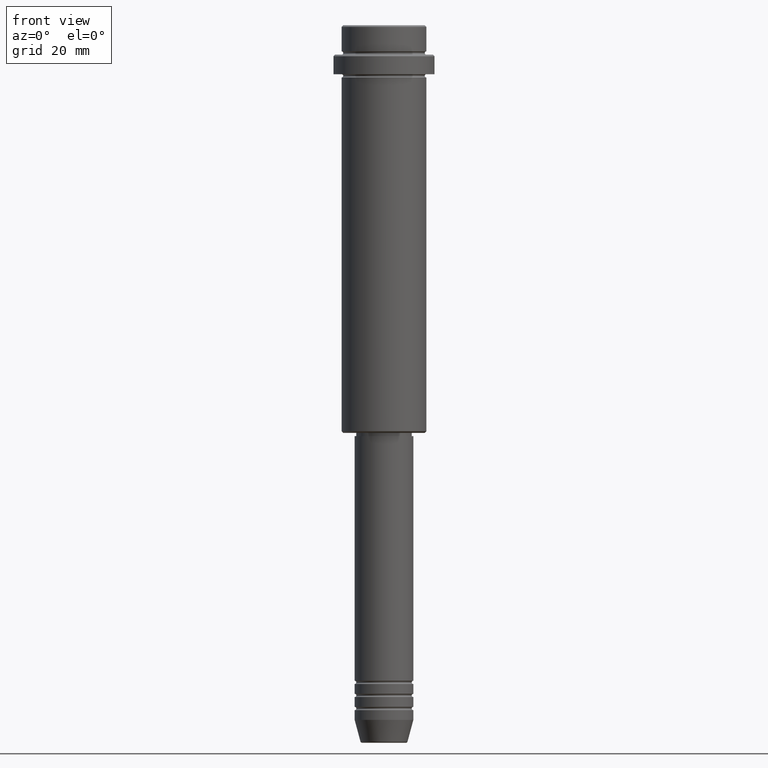
[diagram: clean part render]
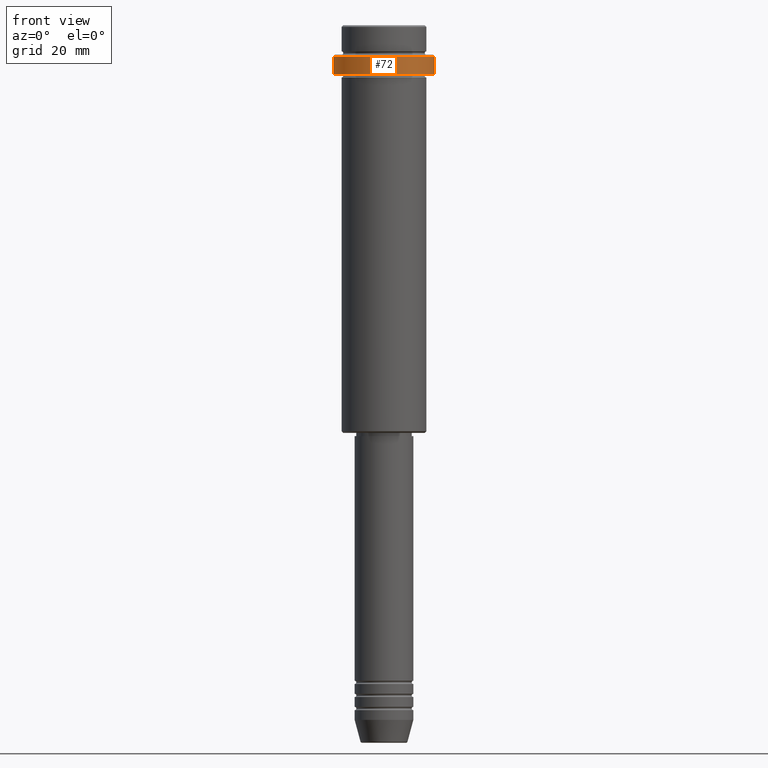
[diagram: same view with one face highlighted and labeled with its STEP entity id]
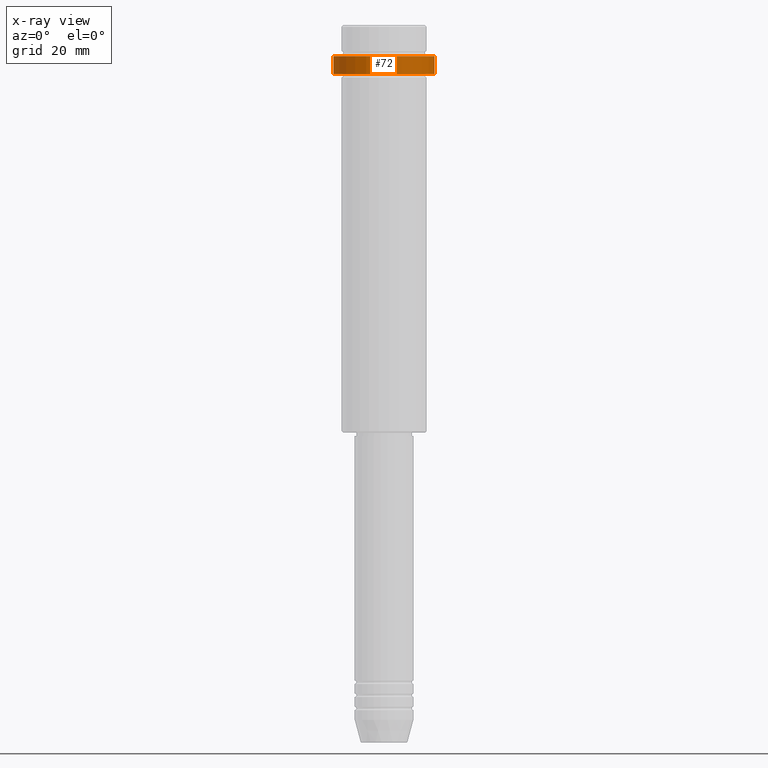
[diagram: x-ray of the same camera — body ghosted, the highlighted face saturated]
A machine part, front view. The second image highlights one B-rep face of the part: STEP entity #72.
The next image is the same camera in x-ray: the body ghosted, the highlighted face saturated — about 0% of this face is hidden behind the body in this view.
In plain terms, the highlighted cylindrical surface (partial cylindrical patch) has radius 15.5 mm, axis along (-0, -0, 1).
Its self-contained STEP definition (entity closure, byte-faithful):
#72 = ADVANCED_FACE ( 'NONE', ( #1295 ), #1071, .T. ) ;
#150 = CIRCLE ( 'NONE', #707, 15.50000000000000000 ) ;
#169 = CARTESIAN_POINT ( 'NONE',  ( -15.50000000000000000, 1.898202538678397557E-15, -9.500000000000014211 ) ) ;
#217 = DIRECTION ( 'NONE',  ( 1.000000000000000000, 0.000000000000000000, 0.000000000000000000 ) ) ;
#256 = VERTEX_POINT ( 'NONE', #1109 ) ;
#294 = VERTEX_POINT ( 'NONE', #169 ) ;
#369 = EDGE_CURVE ( 'NONE', #256, #1181, #1069, .T. ) ;
#377 = EDGE_LOOP ( 'NONE', ( #1096, #658, #738, #689 ) ) ;
#387 = DIRECTION ( 'NONE',  ( 1.000000000000000000, 0.000000000000000000, 0.000000000000000000 ) ) ;
#402 = DIRECTION ( 'NONE',  ( -0.000000000000000000, -0.000000000000000000, 1.000000000000000000 ) ) ;
#424 = CARTESIAN_POINT ( 'NONE',  ( 0.000000000000000000, 0.000000000000000000, -9.500000000000014211 ) ) ;
#435 = VECTOR ( 'NONE', #1180, 1000.000000000000000 ) ;
#458 = CARTESIAN_POINT ( 'NONE',  ( -15.50000000000000000, 1.898202538678397557E-15, -15.00000000000000178 ) ) ;
#580 = DIRECTION ( 'NONE',  ( -0.000000000000000000, -0.000000000000000000, 1.000000000000000000 ) ) ;
#658 = ORIENTED_EDGE ( 'NONE', *, *, #697, .T. ) ;
#689 = ORIENTED_EDGE ( 'NONE', *, *, #732, .T. ) ;
#697 = EDGE_CURVE ( 'NONE', #833, #256, #1309, .T. ) ;
#698 = CARTESIAN_POINT ( 'NONE',  ( -15.50000000000000000, 1.898202538678397557E-15, 0.000000000000000000 ) ) ;
#707 = AXIS2_PLACEMENT_3D ( 'NONE', #424, #1175, #862 ) ;
#732 = EDGE_CURVE ( 'NONE', #1181, #294, #150, .T. ) ;
#738 = ORIENTED_EDGE ( 'NONE', *, *, #369, .T. ) ;
#744 = CARTESIAN_POINT ( 'NONE',  ( 15.50000000000000000, 0.000000000000000000, 0.000000000000000000 ) ) ;
#770 = CARTESIAN_POINT ( 'NONE',  ( 15.50000000000000000, 0.000000000000000000, -9.500000000000014211 ) ) ;
#833 = VERTEX_POINT ( 'NONE', #458 ) ;
#842 = VECTOR ( 'NONE', #580, 1000.000000000000000 ) ;
#862 = DIRECTION ( 'NONE',  ( 1.000000000000000000, 0.000000000000000000, 0.000000000000000000 ) ) ;
#910 = AXIS2_PLACEMENT_3D ( 'NONE', #1395, #963, #217 ) ;
#960 = AXIS2_PLACEMENT_3D ( 'NONE', #1388, #402, #387 ) ;
#963 = DIRECTION ( 'NONE',  ( -0.000000000000000000, -0.000000000000000000, 1.000000000000000000 ) ) ;
#1069 = LINE ( 'NONE', #744, #435 ) ;
#1071 = CYLINDRICAL_SURFACE ( 'NONE', #910, 15.50000000000000000 ) ;
#1096 = ORIENTED_EDGE ( 'NONE', *, *, #1375, .F. ) ;
#1109 = CARTESIAN_POINT ( 'NONE',  ( 15.50000000000000000, 0.000000000000000000, -15.00000000000000178 ) ) ;
#1175 = DIRECTION ( 'NONE',  ( 0.000000000000000000, 0.000000000000000000, -1.000000000000000000 ) ) ;
#1180 = DIRECTION ( 'NONE',  ( -0.000000000000000000, -0.000000000000000000, 1.000000000000000000 ) ) ;
#1181 = VERTEX_POINT ( 'NONE', #770 ) ;
#1295 = FACE_OUTER_BOUND ( 'NONE', #377, .T. ) ;
#1309 = CIRCLE ( 'NONE', #960, 15.50000000000000000 ) ;
#1354 = LINE ( 'NONE', #698, #842 ) ;
#1375 = EDGE_CURVE ( 'NONE', #833, #294, #1354, .T. ) ;
#1388 = CARTESIAN_POINT ( 'NONE',  ( 0.000000000000000000, 0.000000000000000000, -15.00000000000000178 ) ) ;
#1395 = CARTESIAN_POINT ( 'NONE',  ( 0.000000000000000000, 0.000000000000000000, 0.000000000000000000 ) ) ;